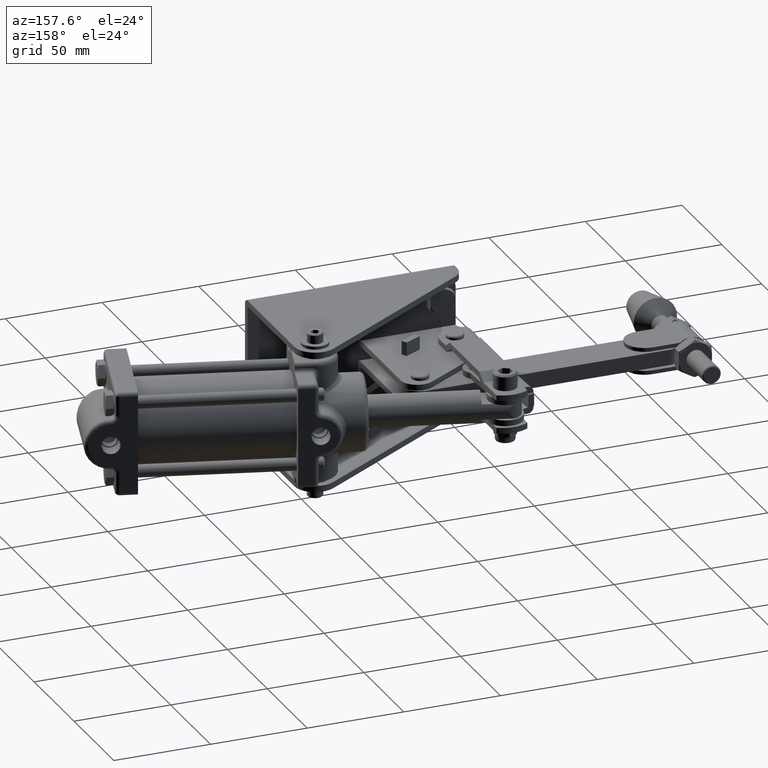
[diagram: clean part render]
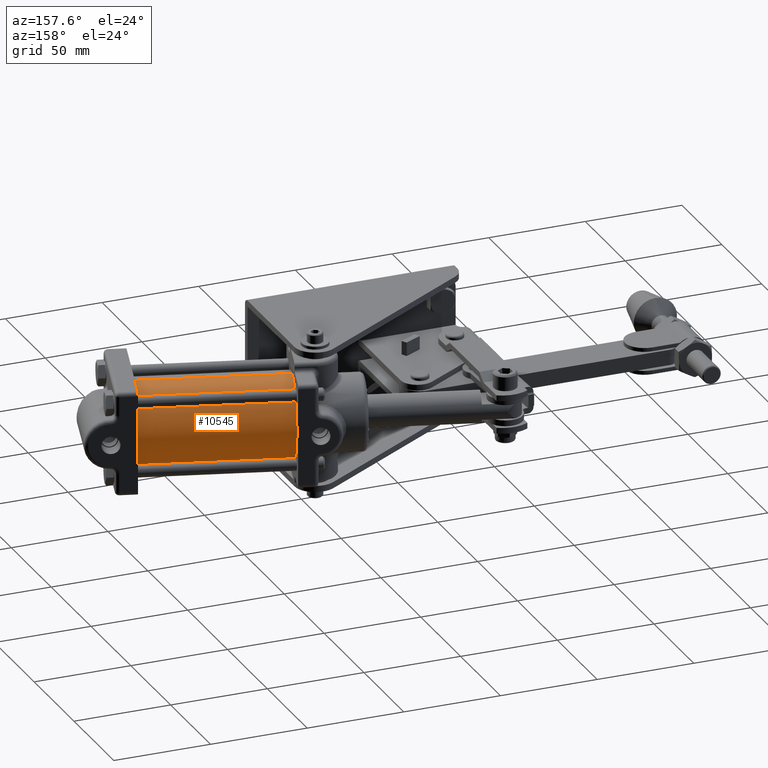
[diagram: same view with one face highlighted and labeled with its STEP entity id]
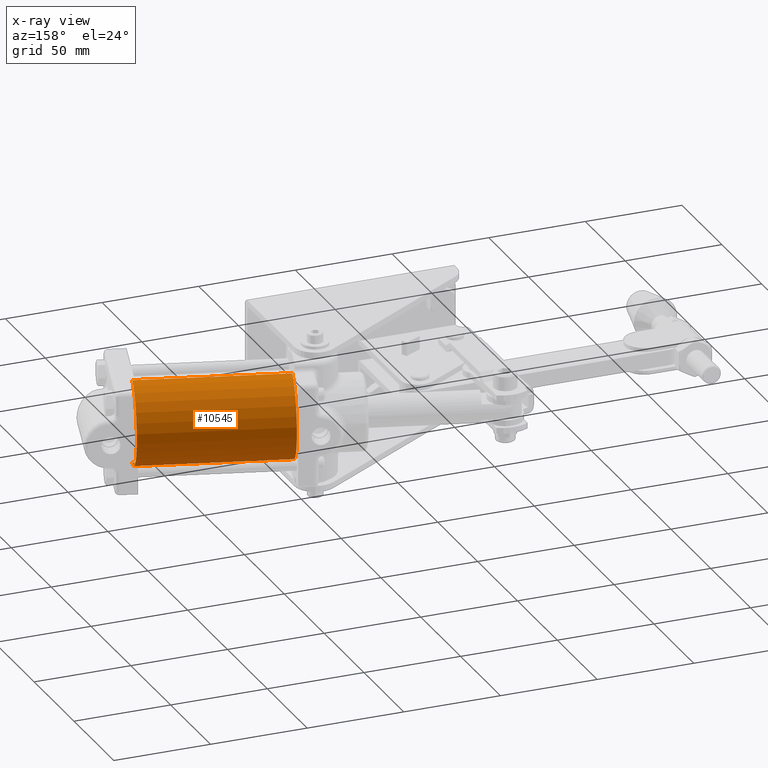
[diagram: x-ray of the same camera — body ghosted, the highlighted face saturated]
A machine part, auxiliary view. The second image highlights one B-rep face of the part: STEP entity #10545.
The next image is the same camera in x-ray: the body ghosted, the highlighted face saturated — about 0% of this face is hidden behind the body in this view.
In plain terms, the highlighted cylindrical surface (partial cylindrical patch) has radius 21.5 mm, axis along (-0.9597, 0.281, 0).
Its self-contained STEP definition (entity closure, byte-faithful):
#425 = EDGE_CURVE ( 'NONE', #1596, #2911, #24276, .T. ) ;
#453 = ORIENTED_EDGE ( 'NONE', *, *, #10752, .F. ) ;
#1596 = VERTEX_POINT ( 'NONE', #16790 ) ;
#2799 = DIRECTION ( 'NONE',  ( -0.9596985987848241100, 0.2810313140745087600, 2.000102180355001100E-016 ) ) ;
#2911 = VERTEX_POINT ( 'NONE', #27271 ) ;
#6694 = EDGE_LOOP ( 'NONE', ( #32120, #14692, #31864, #453 ) ) ;
#6777 = AXIS2_PLACEMENT_3D ( 'NONE', #13330, #30934, #15833 ) ;
#9784 = CARTESIAN_POINT ( 'NONE',  ( 131.1534766930644800, 34.56924436144321100, 21.49999999999998600 ) ) ;
#10545 = ADVANCED_FACE ( 'NONE', ( #25936 ), #12572, .T. ) ;
#10752 = EDGE_CURVE ( 'NONE', #26357, #2911, #12978, .T. ) ;
#10817 = VECTOR ( 'NONE', #22321, 1000.000000000000000 ) ;
#11130 = DIRECTION ( 'NONE',  ( 0.0000000000000000000, 0.0000000000000000000, 1.000000000000000000 ) ) ;
#11343 = CARTESIAN_POINT ( 'NONE',  ( 131.1534766930644800, 34.56924436144321100, -1.546299913100238600E-014 ) ) ;
#12304 = DIRECTION ( 'NONE',  ( -0.9596985987848241100, 0.2810313140745089300, 2.000102180355122200E-016 ) ) ;
#12572 = CYLINDRICAL_SURFACE ( 'NONE', #21702, 21.50000000000000000 ) ;
#12978 = LINE ( 'NONE', #9784, #13764 ) ;
#13330 = CARTESIAN_POINT ( 'NONE',  ( 57.25668458663304200, 56.20865554518039900, -6.221234226794648400E-017 ) ) ;
#13764 = VECTOR ( 'NONE', #12304, 1000.000000000000000 ) ;
#14692 = ORIENTED_EDGE ( 'NONE', *, *, #24331, .T. ) ;
#15228 = AXIS2_PLACEMENT_3D ( 'NONE', #17811, #2799, #20335 ) ;
#15833 = DIRECTION ( 'NONE',  ( -3.227392513445222300E-016, 0.0000000000000000000, -1.000000000000000000 ) ) ;
#16790 = CARTESIAN_POINT ( 'NONE',  ( 57.25668458663304200, 56.20865554518039900, -21.50000000000000000 ) ) ;
#17811 = CARTESIAN_POINT ( 'NONE',  ( 131.1534766930645000, 34.56924436144320400, -1.546299913100238900E-014 ) ) ;
#18337 = CARTESIAN_POINT ( 'NONE',  ( 131.1534766930645000, 34.56924436144320400, 21.49999999999998600 ) ) ;
#18876 = DIRECTION ( 'NONE',  ( -0.9596985987848241100, 0.2810313140745089300, 2.000102180355122200E-016 ) ) ;
#20335 = DIRECTION ( 'NONE',  ( 0.2810313140745093200, 0.9596985987848240000, 0.0000000000000000000 ) ) ;
#21702 = AXIS2_PLACEMENT_3D ( 'NONE', #11343, #18876, #11130 ) ;
#22213 = CARTESIAN_POINT ( 'NONE',  ( 131.1534766930644800, 34.56924436144321800, -21.50000000000001100 ) ) ;
#22321 = DIRECTION ( 'NONE',  ( -0.9596985987848241100, 0.2810313140745089300, 2.000102180355122200E-016 ) ) ;
#22394 = EDGE_CURVE ( 'NONE', #26357, #24257, #25506, .T. ) ;
#24257 = VERTEX_POINT ( 'NONE', #32266 ) ;
#24276 = CIRCLE ( 'NONE', #6777, 21.50000000000000000 ) ;
#24331 = EDGE_CURVE ( 'NONE', #24257, #1596, #30882, .T. ) ;
#25506 = CIRCLE ( 'NONE', #15228, 21.50000000000000400 ) ;
#25936 = FACE_OUTER_BOUND ( 'NONE', #6694, .T. ) ;
#26357 = VERTEX_POINT ( 'NONE', #18337 ) ;
#27271 = CARTESIAN_POINT ( 'NONE',  ( 57.25668458663304200, 56.20865554518039200, 21.50000000000000000 ) ) ;
#30882 = LINE ( 'NONE', #22213, #10817 ) ;
#30934 = DIRECTION ( 'NONE',  ( 0.9596985987848241100, -0.2810313140745089300, -2.000102180355122200E-016 ) ) ;
#31864 = ORIENTED_EDGE ( 'NONE', *, *, #425, .T. ) ;
#32120 = ORIENTED_EDGE ( 'NONE', *, *, #22394, .T. ) ;
#32266 = CARTESIAN_POINT ( 'NONE',  ( 131.1534766930645000, 34.56924436144321100, -21.50000000000001100 ) ) ;